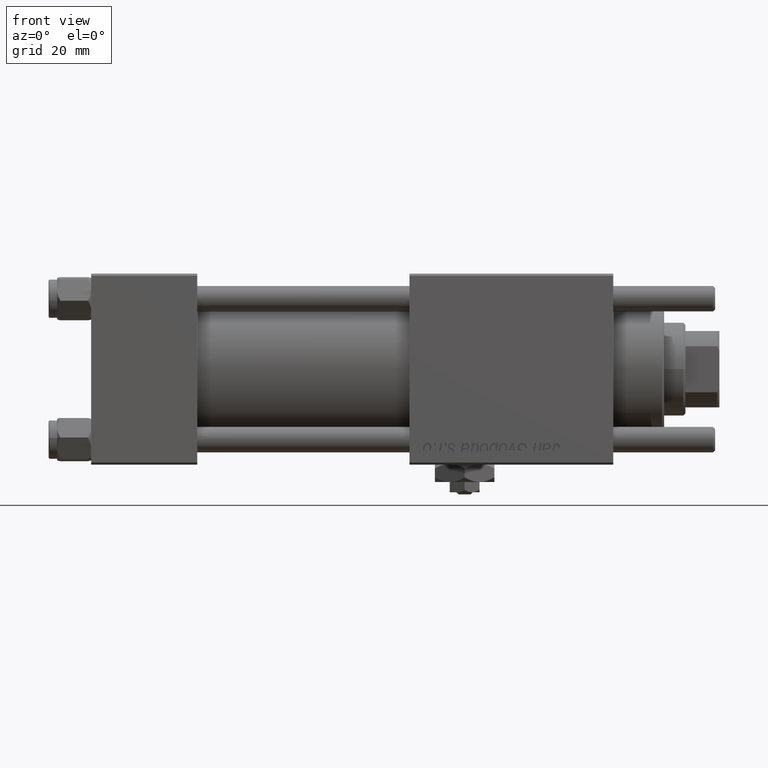
[diagram: clean part render]
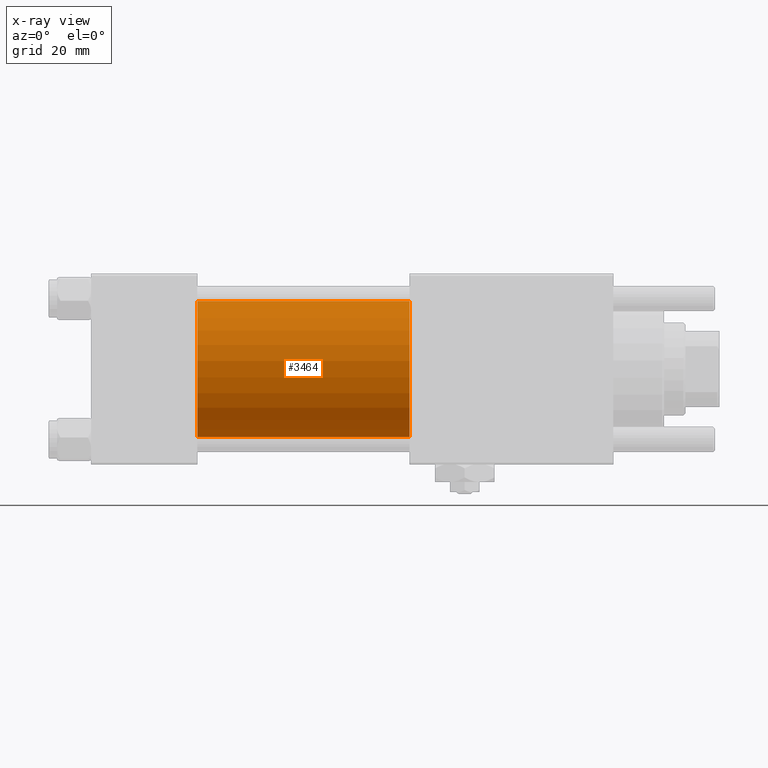
[diagram: x-ray — body ghosted, one internal face saturated and labeled with its STEP entity id]
A machine part, front view, then the same camera in x-ray: the body is ghosted and one INTERNAL B-rep face — a face not visible from any outside direction — is saturated and labeled: STEP entity #3464.
In plain terms, the highlighted cylindrical surface (partial cylindrical patch) has radius 16 mm, axis along (-1, -0, -0).
Its self-contained STEP definition (entity closure, byte-faithful):
#939 = CIRCLE ( 'NONE', #37832, 16.00000000000000000 ) ;
#1292 = CARTESIAN_POINT ( 'NONE',  ( 25.00000000000000000, -2.602085213965210642E-15, 16.00000000000000000 ) ) ;
#2265 = DIRECTION ( 'NONE',  ( -1.000000000000000000, -0.000000000000000000, -0.000000000000000000 ) ) ;
#3023 = CARTESIAN_POINT ( 'NONE',  ( 25.00000000000000000, -2.602085213965210642E-15, 0.000000000000000000 ) ) ;
#3087 = AXIS2_PLACEMENT_3D ( 'NONE', #32604, #18380, #50648 ) ;
#3464 = ADVANCED_FACE ( 'NONE', ( #5044 ), #14816, .F. ) ;
#5044 = FACE_OUTER_BOUND ( 'NONE', #17304, .T. ) ;
#8049 = DIRECTION ( 'NONE',  ( 1.000000000000000000, 0.000000000000000000, 0.000000000000000000 ) ) ;
#9628 = DIRECTION ( 'NONE',  ( 0.000000000000000000, 0.000000000000000000, -1.000000000000000000 ) ) ;
#10000 = EDGE_CURVE ( 'NONE', #11872, #55703, #14475, .T. ) ;
#10475 = EDGE_CURVE ( 'NONE', #34552, #33219, #25645, .T. ) ;
#11872 = VERTEX_POINT ( 'NONE', #33822 ) ;
#13208 = CARTESIAN_POINT ( 'NONE',  ( 75.00000000000001421, -2.602085213965210642E-15, 0.000000000000000000 ) ) ;
#14475 = LINE ( 'NONE', #23961, #21131 ) ;
#14816 = CYLINDRICAL_SURFACE ( 'NONE', #3087, 16.00000000000000000 ) ;
#17304 = EDGE_LOOP ( 'NONE', ( #39700, #49149, #21301, #19269 ) ) ;
#18380 = DIRECTION ( 'NONE',  ( -1.000000000000000000, -0.000000000000000000, -0.000000000000000000 ) ) ;
#19265 = CIRCLE ( 'NONE', #22091, 16.00000000000000000 ) ;
#19269 = ORIENTED_EDGE ( 'NONE', *, *, #10000, .F. ) ;
#21131 = VECTOR ( 'NONE', #42021, 1000.000000000000000 ) ;
#21301 = ORIENTED_EDGE ( 'NONE', *, *, #21312, .F. ) ;
#21312 = EDGE_CURVE ( 'NONE', #55703, #33219, #19265, .T. ) ;
#22091 = AXIS2_PLACEMENT_3D ( 'NONE', #3023, #8049, #39453 ) ;
#23961 = CARTESIAN_POINT ( 'NONE',  ( 75.00000000000001421, -2.602085213965210642E-15, 16.00000000000000000 ) ) ;
#25645 = LINE ( 'NONE', #51997, #57049 ) ;
#31576 = DIRECTION ( 'NONE',  ( 1.000000000000000000, 0.000000000000000000, 0.000000000000000000 ) ) ;
#32604 = CARTESIAN_POINT ( 'NONE',  ( 75.00000000000001421, -2.602085213965210642E-15, 0.000000000000000000 ) ) ;
#33219 = VERTEX_POINT ( 'NONE', #55979 ) ;
#33822 = CARTESIAN_POINT ( 'NONE',  ( 75.00000000000001421, -2.602085213965210642E-15, 16.00000000000000000 ) ) ;
#34552 = VERTEX_POINT ( 'NONE', #48452 ) ;
#37832 = AXIS2_PLACEMENT_3D ( 'NONE', #13208, #31576, #9628 ) ;
#39453 = DIRECTION ( 'NONE',  ( 0.000000000000000000, 0.000000000000000000, -1.000000000000000000 ) ) ;
#39700 = ORIENTED_EDGE ( 'NONE', *, *, #48611, .T. ) ;
#42021 = DIRECTION ( 'NONE',  ( -1.000000000000000000, -0.000000000000000000, -0.000000000000000000 ) ) ;
#48452 = CARTESIAN_POINT ( 'NONE',  ( 75.00000000000001421, -6.426503353294456087E-16, -16.00000000000000000 ) ) ;
#48611 = EDGE_CURVE ( 'NONE', #11872, #34552, #939, .T. ) ;
#49149 = ORIENTED_EDGE ( 'NONE', *, *, #10475, .T. ) ;
#50648 = DIRECTION ( 'NONE',  ( 0.000000000000000000, 0.000000000000000000, 1.000000000000000000 ) ) ;
#51997 = CARTESIAN_POINT ( 'NONE',  ( 75.00000000000001421, -6.426503353294456087E-16, -16.00000000000000000 ) ) ;
#55703 = VERTEX_POINT ( 'NONE', #1292 ) ;
#55979 = CARTESIAN_POINT ( 'NONE',  ( 25.00000000000000000, -6.426503353294456087E-16, -16.00000000000000000 ) ) ;
#57049 = VECTOR ( 'NONE', #2265, 1000.000000000000000 ) ;